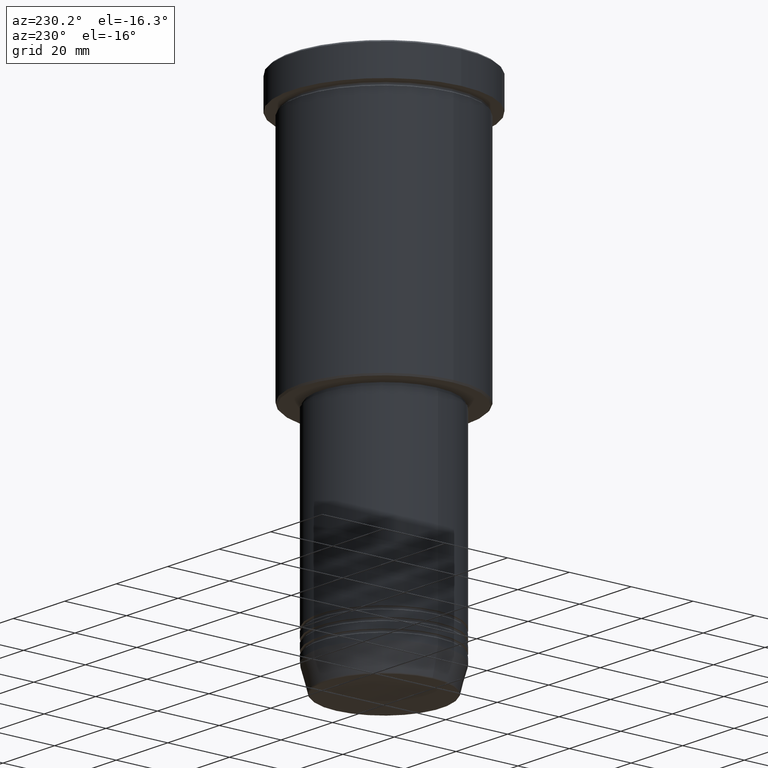
[diagram: clean part render]
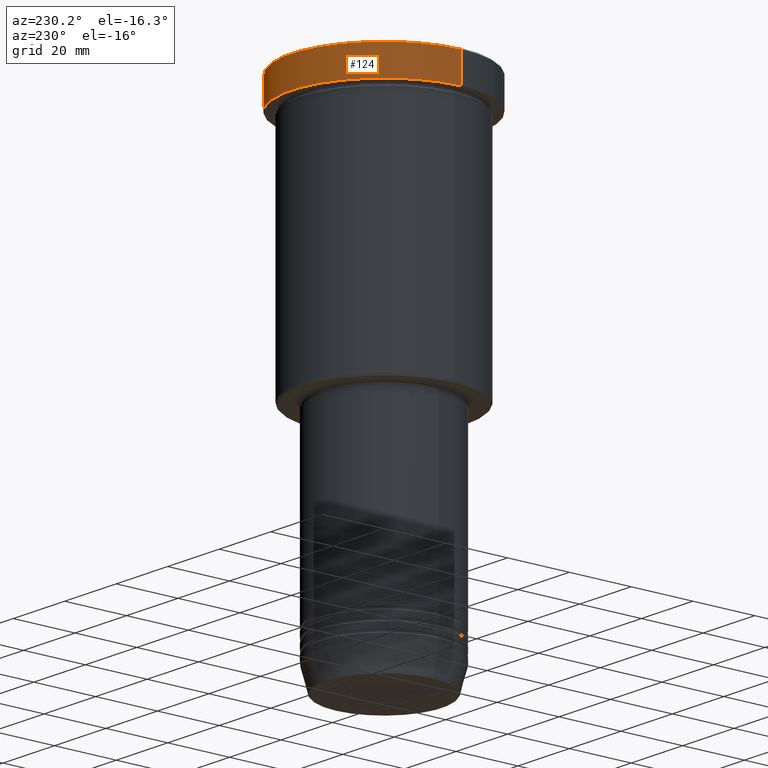
[diagram: same view with one face highlighted and labeled with its STEP entity id]
A machine part, auxiliary view. The second image highlights one B-rep face of the part: STEP entity #124.
In plain terms, the highlighted cylindrical surface (partial cylindrical patch) has radius 30 mm, axis along (-0, -0, 1).
Its self-contained STEP definition (entity closure, byte-faithful):
#101 = CYLINDRICAL_SURFACE ( 'NONE', #1047, 30.00000000000000000 ) ;
#103 = EDGE_CURVE ( 'NONE', #602, #1033, #812, .T. ) ;
#124 = ADVANCED_FACE ( 'NONE', ( #1010 ), #101, .T. ) ;
#126 = DIRECTION ( 'NONE',  ( 1.000000000000000000, 0.000000000000000000, 0.000000000000000000 ) ) ;
#127 = ORIENTED_EDGE ( 'NONE', *, *, #865, .T. ) ;
#145 = CARTESIAN_POINT ( 'NONE',  ( 0.000000000000000000, 0.000000000000000000, -0.5000000000000073275 ) ) ;
#153 = DIRECTION ( 'NONE',  ( 0.000000000000000000, 0.000000000000000000, -1.000000000000000000 ) ) ;
#236 = DIRECTION ( 'NONE',  ( -0.000000000000000000, -0.000000000000000000, 1.000000000000000000 ) ) ;
#246 = VERTEX_POINT ( 'NONE', #751 ) ;
#277 = DIRECTION ( 'NONE',  ( -0.000000000000000000, -0.000000000000000000, 1.000000000000000000 ) ) ;
#279 = DIRECTION ( 'NONE',  ( -0.000000000000000000, -0.000000000000000000, 1.000000000000000000 ) ) ;
#319 = AXIS2_PLACEMENT_3D ( 'NONE', #145, #153, #126 ) ;
#393 = CARTESIAN_POINT ( 'NONE',  ( -30.00000000000000000, 3.673940397442059178E-15, 0.000000000000000000 ) ) ;
#468 = CARTESIAN_POINT ( 'NONE',  ( 0.000000000000000000, 0.000000000000000000, 0.000000000000000000 ) ) ;
#489 = VERTEX_POINT ( 'NONE', #810 ) ;
#501 = ORIENTED_EDGE ( 'NONE', *, *, #688, .T. ) ;
#594 = ORIENTED_EDGE ( 'NONE', *, *, #103, .F. ) ;
#600 = DIRECTION ( 'NONE',  ( 1.000000000000000000, 0.000000000000000000, 0.000000000000000000 ) ) ;
#602 = VERTEX_POINT ( 'NONE', #1162 ) ;
#638 = CARTESIAN_POINT ( 'NONE',  ( 30.00000000000000000, 0.000000000000000000, -0.5000000000000073275 ) ) ;
#642 = DIRECTION ( 'NONE',  ( 1.000000000000000000, 0.000000000000000000, 0.000000000000000000 ) ) ;
#665 = CIRCLE ( 'NONE', #319, 30.00000000000000000 ) ;
#688 = EDGE_CURVE ( 'NONE', #246, #489, #1099, .T. ) ;
#706 = CIRCLE ( 'NONE', #804, 30.00000000000000000 ) ;
#746 = VECTOR ( 'NONE', #1097, 1000.000000000000000 ) ;
#751 = CARTESIAN_POINT ( 'NONE',  ( -30.00000000000000000, 3.673940397442059178E-15, -9.999999999999992895 ) ) ;
#767 = CARTESIAN_POINT ( 'NONE',  ( 0.000000000000000000, 0.000000000000000000, -9.999999999999992895 ) ) ;
#775 = ORIENTED_EDGE ( 'NONE', *, *, #888, .T. ) ;
#804 = AXIS2_PLACEMENT_3D ( 'NONE', #767, #236, #600 ) ;
#810 = CARTESIAN_POINT ( 'NONE',  ( -30.00000000000000000, 3.673940397442059178E-15, -0.5000000000000073275 ) ) ;
#812 = LINE ( 'NONE', #827, #746 ) ;
#827 = CARTESIAN_POINT ( 'NONE',  ( 30.00000000000000000, 0.000000000000000000, 0.000000000000000000 ) ) ;
#865 = EDGE_CURVE ( 'NONE', #489, #1033, #665, .T. ) ;
#888 = EDGE_CURVE ( 'NONE', #602, #246, #706, .T. ) ;
#900 = VECTOR ( 'NONE', #279, 1000.000000000000000 ) ;
#920 = EDGE_LOOP ( 'NONE', ( #775, #501, #127, #594 ) ) ;
#1010 = FACE_OUTER_BOUND ( 'NONE', #920, .T. ) ;
#1033 = VERTEX_POINT ( 'NONE', #638 ) ;
#1047 = AXIS2_PLACEMENT_3D ( 'NONE', #468, #277, #642 ) ;
#1097 = DIRECTION ( 'NONE',  ( -0.000000000000000000, -0.000000000000000000, 1.000000000000000000 ) ) ;
#1099 = LINE ( 'NONE', #393, #900 ) ;
#1162 = CARTESIAN_POINT ( 'NONE',  ( 30.00000000000000000, 0.000000000000000000, -9.999999999999992895 ) ) ;